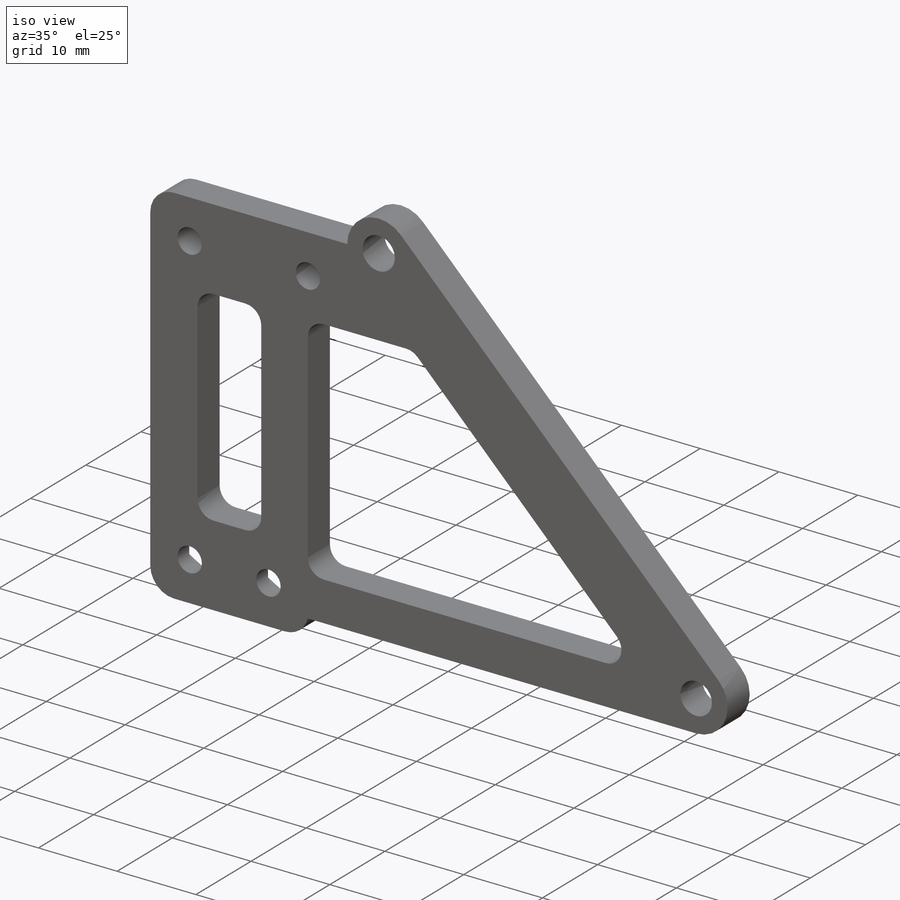
[diagram: iso view]
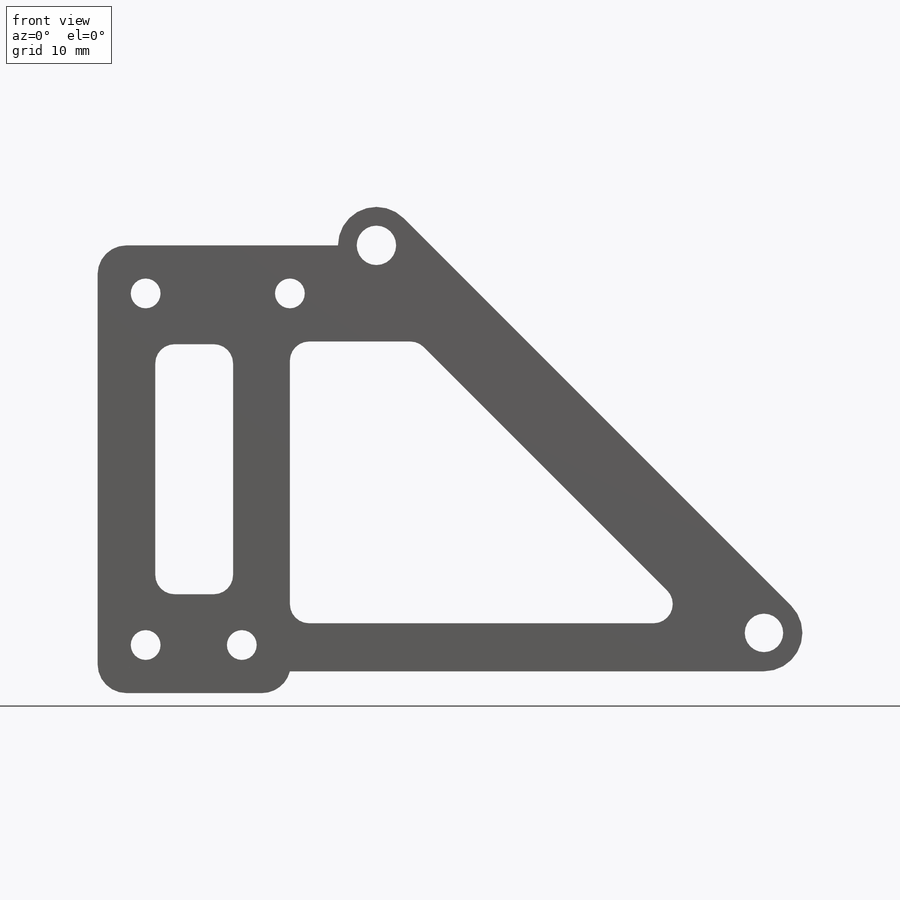
[diagram: front view]
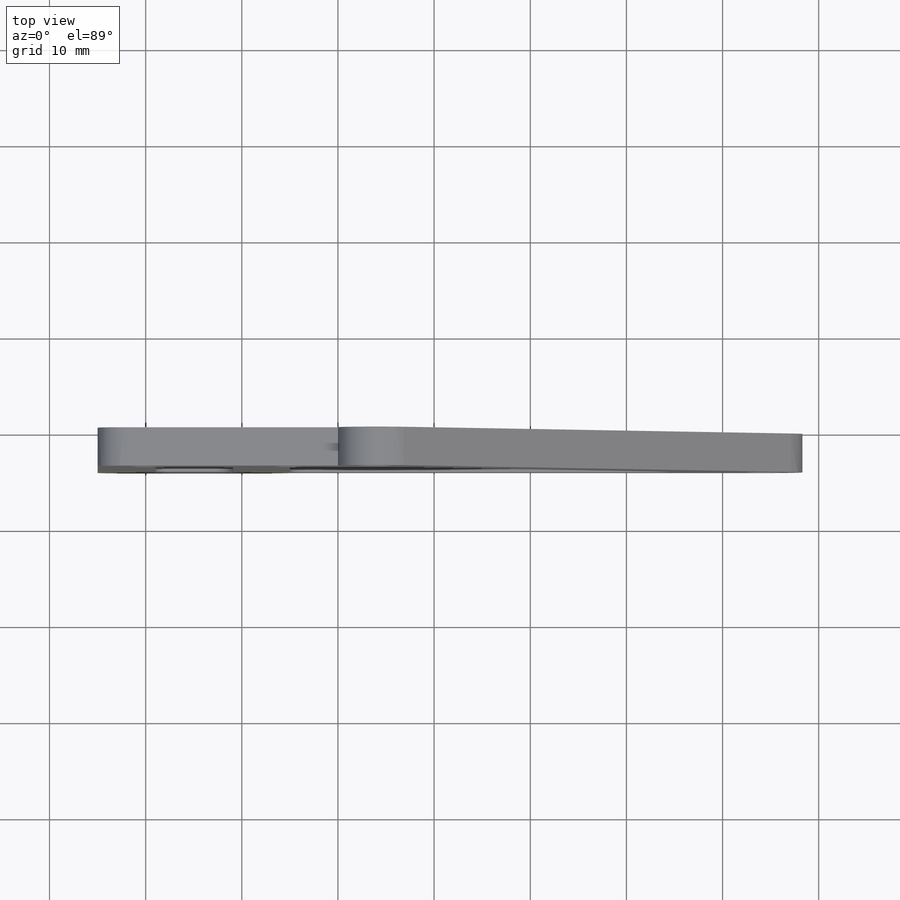
[diagram: top view]
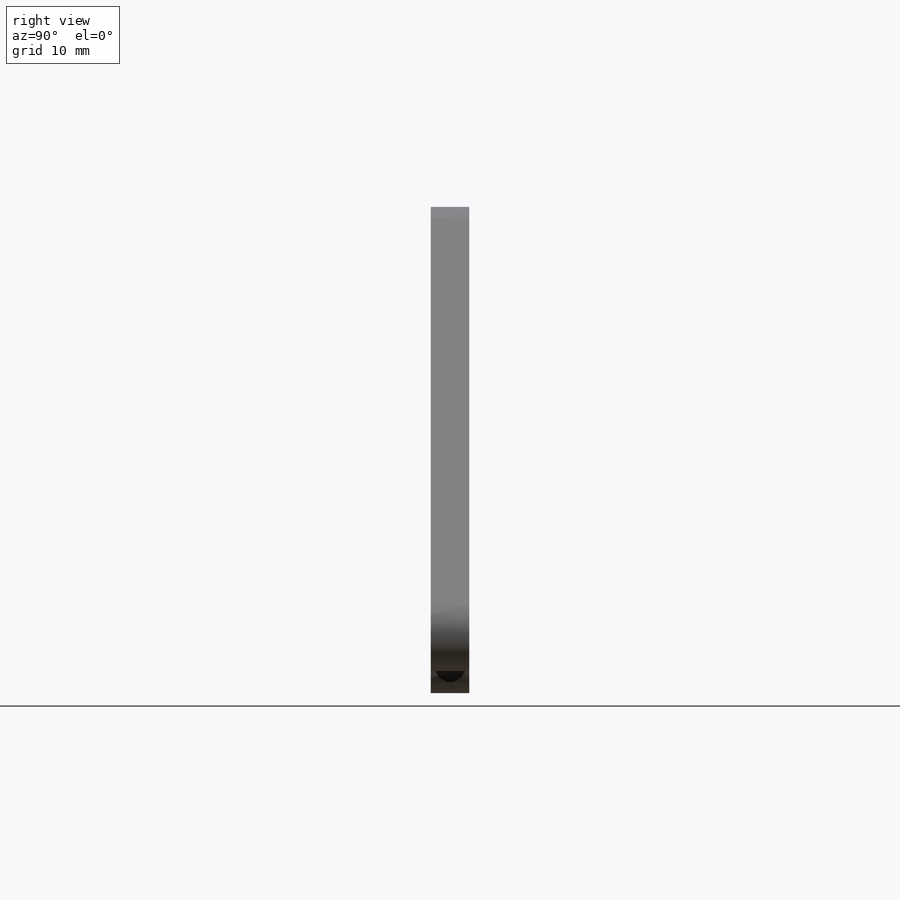
[diagram: right view]
SOLIDWORKS PART (.sldprt)
format: sldprt  version: not decoded by parser v0  size: 365,056 bytes
history: native  units: mm
features: sketch x8, extrude x4, cut_extrude x4, fillet x3, material x1 (+13 scaffold rows collapsed)
feature tree (33):
  scaffold x13  (default folders/planes/origin — collapsed)
  material  "Material <not specified>"
  sketch  "Sketch1"  dims[c1.D1=4.1mm c1.D3=8.0mm c1.D2=4.0mm c2.D3=10.0mm c2.D4=15.0mm]
  extrude  "Boss-Extrude1"  Depth=4mm
  sketch  "Sketch2"  dims[D1=8.0mm]
  extrude  "Boss-Extrude2"  [1 undecoded]
  sketch  "Sketch3"  dims[D1=20.0mm]
  extrude  "Boss-Extrude3"  [1 undecoded]
  sketch  "Sketch4"
  cut_extrude  "Cut-Extrude1"  [1 undecoded]
  sketch  "Sketch5"  dims[D1=5.7mm]
  cut_extrude  "Cut-Extrude2"  Depth=2mm
  sketch  "Sketch6"  dims[D1=5.0mm D2=0.0mm]
  extrude  "Boss-Extrude4"  [1 undecoded]
  fillet  "Fillet1"  Radius=2mm
  fillet  "Fillet2"  Radius=3mm
  sketch  "Sketch7"  dims[D1=6.0mm D2=26.0mm]
  cut_extrude  "Cut-Extrude3"  Depth=10mm
  fillet  "Fillet3"  Radius=2mm
  sketch  "Sketch8"  dims[D1=5.7mm]
  cut_extrude  "Cut-Extrude4"  Depth=2mm
decode coverage: 14 of 19 modeling features carry decoded parameters
note: 4 parameter values undecoded
summary: no parameter record found for 4 features
note: suppression state not decoded; provenance and decode notes live in map.json
